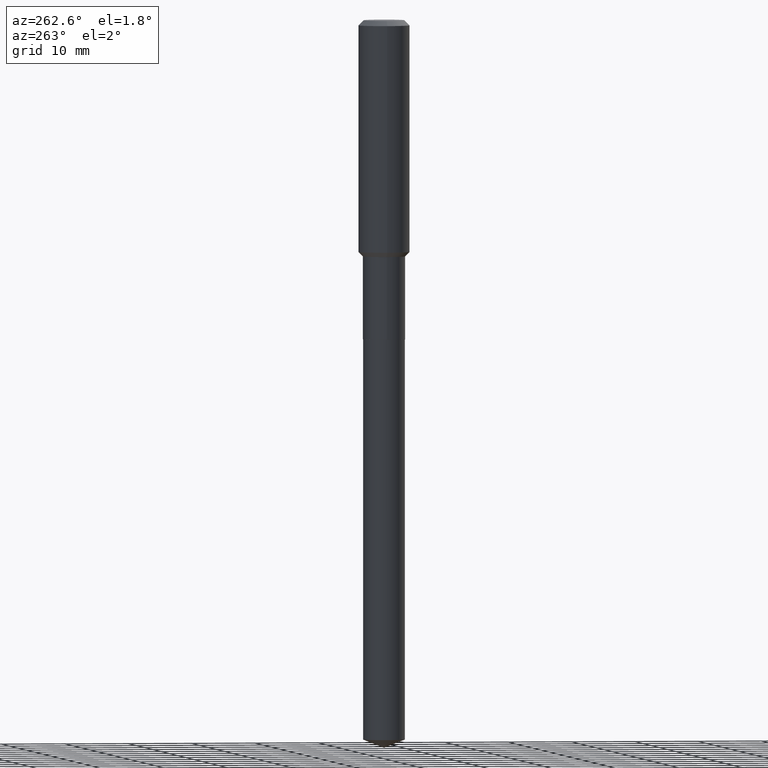
[diagram: clean part render]
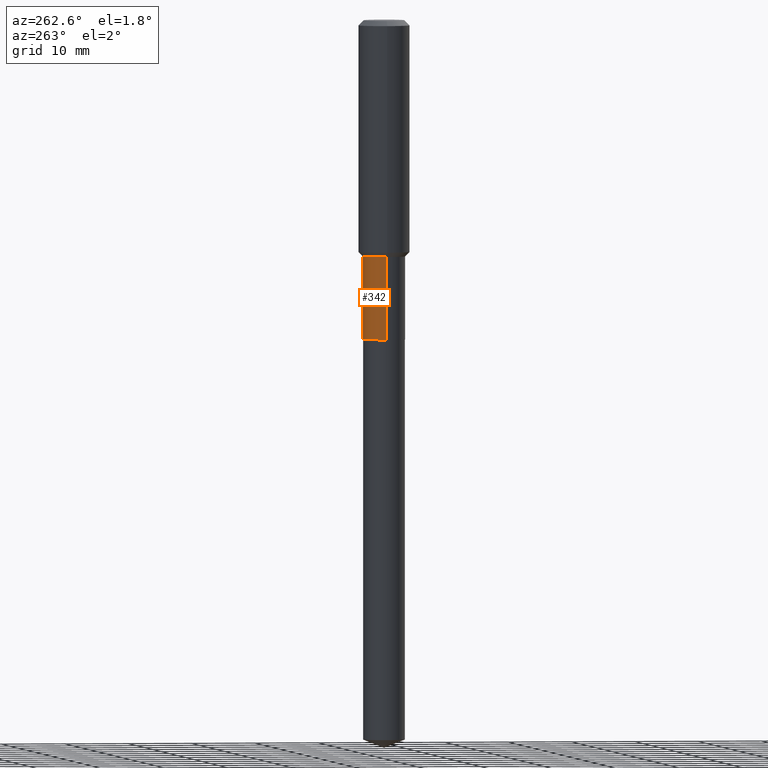
[diagram: same view with one face highlighted and labeled with its STEP entity id]
A machine part, auxiliary view. The second image highlights one B-rep face of the part: STEP entity #342.
In plain terms, the highlighted cylindrical surface (edge-blend (fillet) strip) has radius 3.2995 mm, axis along (-0, 0, 1).
Its self-contained STEP definition (entity closure, byte-faithful):
#33 = CARTESIAN_POINT ( 'NONE',  ( 0.1298999999999999599, -9.070868518314457948E-16, 6.334153631758918028E-30 ) ) ;
#51 = EDGE_CURVE ( 'NONE', #459, #127, #338, .T. ) ;
#54 = VECTOR ( 'NONE', #373, 39.37007874015748143 ) ;
#55 = ORIENTED_EDGE ( 'NONE', *, *, #395, .F. ) ;
#64 = CARTESIAN_POINT ( 'NONE',  ( 0.000000000000000000, 0.000000000000000000, 0.000000000000000000 ) ) ;
#69 = CARTESIAN_POINT ( 'NONE',  ( 0.1298999999999999322, -5.994524310659792457E-15, -1.457100000000000062 ) ) ;
#73 = DIRECTION ( 'NONE',  ( -2.445468806185136597E-29, 3.491481338843145583E-15, 1.000000000000000000 ) ) ;
#79 = DIRECTION ( 'NONE',  ( -2.445468806185136597E-29, 3.491481338843145583E-15, 1.000000000000000000 ) ) ;
#84 = CARTESIAN_POINT ( 'NONE',  ( 0.1298999999999999877, -7.778322126674757379E-15, -1.968000000000000194 ) ) ;
#98 = ORIENTED_EDGE ( 'NONE', *, *, #422, .F. ) ;
#107 = AXIS2_PLACEMENT_3D ( 'NONE', #64, #73, #402 ) ;
#111 = CARTESIAN_POINT ( 'NONE',  ( -0.1298999999999999877, -5.056341353083458675E-15, -1.968000000000000194 ) ) ;
#116 = CARTESIAN_POINT ( 'NONE',  ( -0.1298999999999999599, 9.229950137523698568E-16, -6.389696682241120408E-30 ) ) ;
#127 = VERTEX_POINT ( 'NONE', #111 ) ;
#154 = VECTOR ( 'NONE', #447, 39.37007874015748143 ) ;
#160 = DIRECTION ( 'NONE',  ( -2.445468806185136597E-29, 3.491481338843145583E-15, 1.000000000000000000 ) ) ;
#169 = VERTEX_POINT ( 'NONE', #443 ) ;
#170 = EDGE_CURVE ( 'NONE', #127, #169, #448, .T. ) ;
#178 = FACE_OUTER_BOUND ( 'NONE', #488, .T. ) ;
#192 = DIRECTION ( 'NONE',  ( 1.000000000000000000, -6.982962677686263555E-15, 0.000000000000000000 ) ) ;
#218 = ORIENTED_EDGE ( 'NONE', *, *, #170, .T. ) ;
#255 = AXIS2_PLACEMENT_3D ( 'NONE', #297, #79, #397 ) ;
#297 = CARTESIAN_POINT ( 'NONE',  ( 4.812682610572349594E-29, -6.871235274843310993E-15, -1.968000000000000194 ) ) ;
#326 = CYLINDRICAL_SURFACE ( 'NONE', #107, 0.1298999999999999599 ) ;
#330 = VERTEX_POINT ( 'NONE', #69 ) ;
#338 = CIRCLE ( 'NONE', #255, 0.1298999999999999877 ) ;
#342 = ADVANCED_FACE ( 'NONE', ( #178 ), #326, .T. ) ;
#373 = DIRECTION ( 'NONE',  ( -2.445468806185136877E-29, 3.491481338843145188E-15, 1.000000000000000000 ) ) ;
#395 = EDGE_CURVE ( 'NONE', #459, #330, #409, .T. ) ;
#397 = DIRECTION ( 'NONE',  ( 1.000000000000000000, -6.982962677686268288E-15, 0.000000000000000000 ) ) ;
#402 = DIRECTION ( 'NONE',  ( 1.000000000000000000, -6.982962677686266711E-15, 4.876176775795935232E-29 ) ) ;
#409 = LINE ( 'NONE', #33, #154 ) ;
#422 = EDGE_CURVE ( 'NONE', #330, #169, #444, .T. ) ;
#424 = ORIENTED_EDGE ( 'NONE', *, *, #51, .T. ) ;
#443 = CARTESIAN_POINT ( 'NONE',  ( -0.1298999999999999322, -5.056341353083459464E-15, -1.457100000000000062 ) ) ;
#444 = CIRCLE ( 'NONE', #481, 0.1298999999999999322 ) ;
#447 = DIRECTION ( 'NONE',  ( -2.445468806185136877E-29, 3.491481338843145188E-15, 1.000000000000000000 ) ) ;
#448 = LINE ( 'NONE', #116, #54 ) ;
#459 = VERTEX_POINT ( 'NONE', #84 ) ;
#481 = AXIS2_PLACEMENT_3D ( 'NONE', #489, #160, #192 ) ;
#488 = EDGE_LOOP ( 'NONE', ( #424, #218, #98, #55 ) ) ;
#489 = CARTESIAN_POINT ( 'NONE',  ( 3.563292597492362932E-29, -5.087437458828347648E-15, -1.457100000000000062 ) ) ;